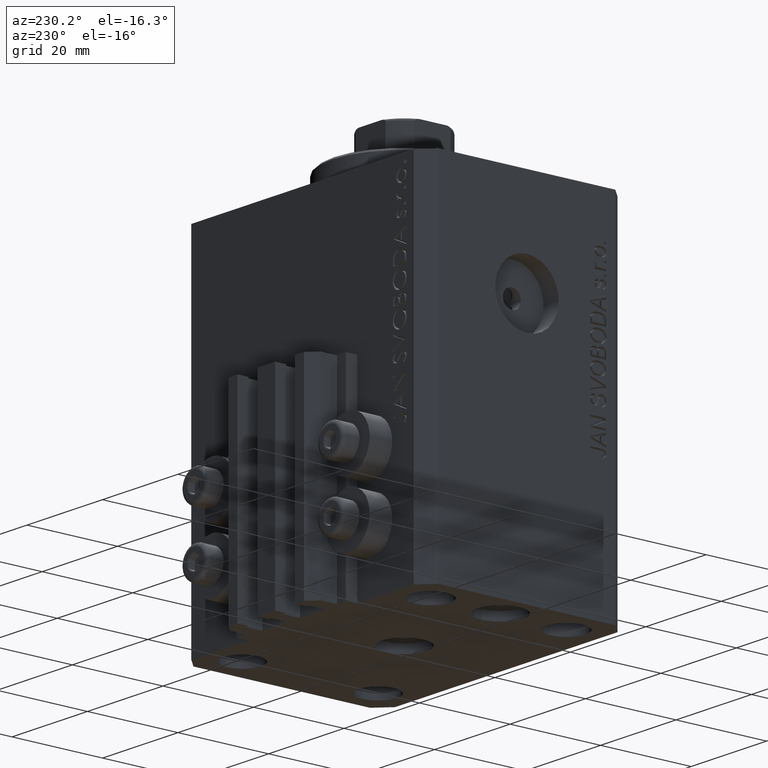
[diagram: clean part render]
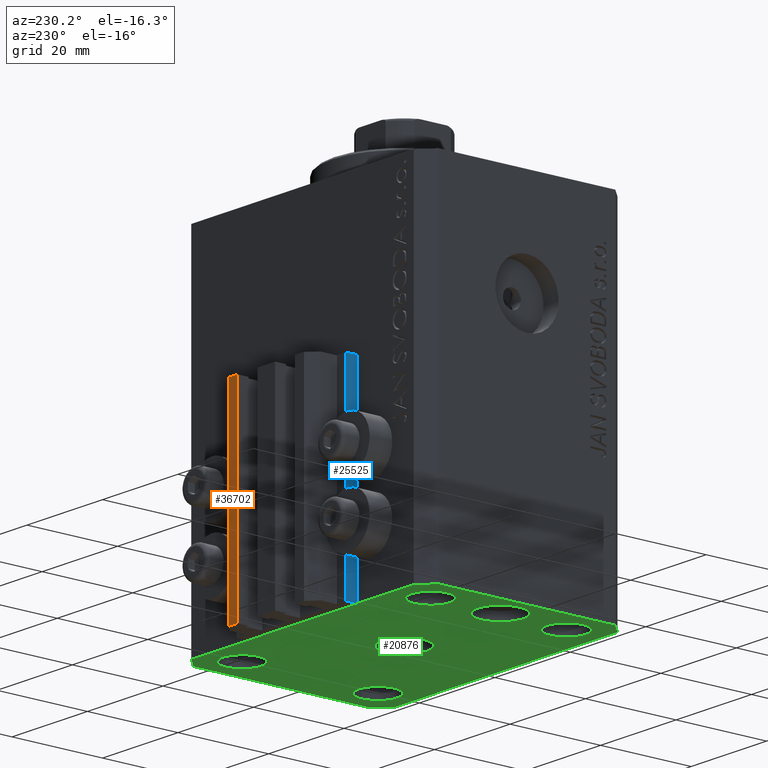
[diagram: same view with three faces highlighted in distinct colors, each labeled with its STEP entity id]
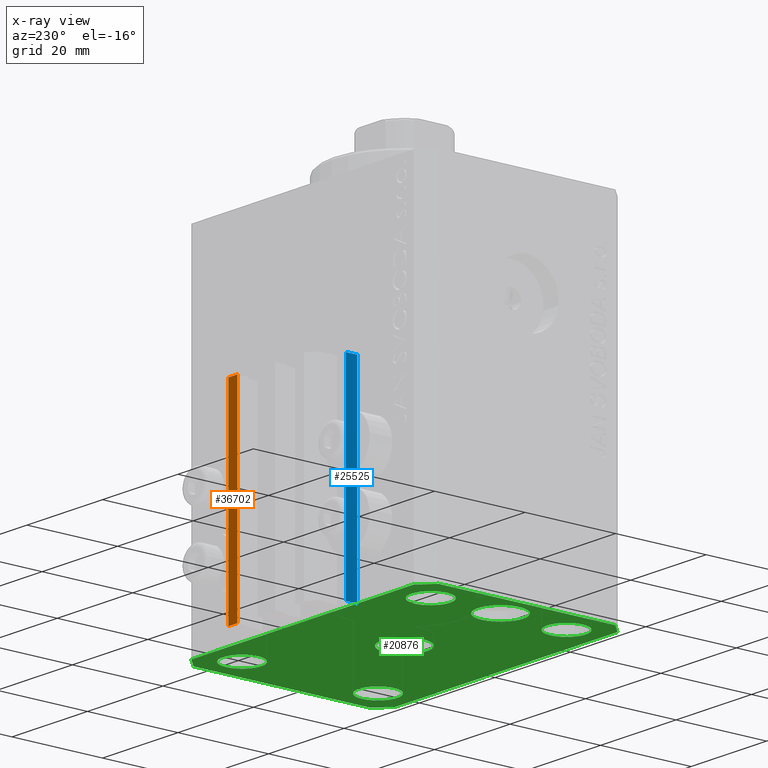
[diagram: x-ray of the same camera — body ghosted, the three highlighted faces saturated]
A machine part, auxiliary view with three faces highlighted in distinct colors.
The next image is the same camera in x-ray (body ghosted, the three faces saturated) — at least one of them is partly hidden behind the body in this view.
Their STEP definitions:

[orange] entity #36702 — the highlighted planar face has unit normal (-0, 1, 0).
#71 = VERTEX_POINT ( 'NONE', #29926 ) ;
#2819 = VECTOR ( 'NONE', #28396, 1000.000000000000000 ) ;
#4669 = EDGE_CURVE ( 'NONE', #71, #8861, #21517, .T. ) ;
#4730 = FACE_OUTER_BOUND ( 'NONE', #14486, .T. ) ;
#5488 = EDGE_CURVE ( 'NONE', #24331, #71, #39129, .T. ) ;
#8861 = VERTEX_POINT ( 'NONE', #27674 ) ;
#11060 = LINE ( 'NONE', #15606, #18005 ) ;
#13747 = EDGE_CURVE ( 'NONE', #24331, #40830, #11060, .T. ) ;
#14486 = EDGE_LOOP ( 'NONE', ( #17598, #23293, #31048, #30594 ) ) ;
#15509 = CARTESIAN_POINT ( 'NONE',  ( 9.999999999999994671, 30.49999999999949551, -77.00000000000000000 ) ) ;
#15606 = CARTESIAN_POINT ( 'NONE',  ( 9.999999999999994671, 30.49999999999949551, -77.00000000000000000 ) ) ;
#17294 = EDGE_CURVE ( 'NONE', #40830, #8861, #45683, .T. ) ;
#17598 = ORIENTED_EDGE ( 'NONE', *, *, #4669, .F. ) ;
#18005 = VECTOR ( 'NONE', #25710, 1000.000000000000000 ) ;
#18645 = VECTOR ( 'NONE', #35276, 1000.000000000000000 ) ;
#18871 = PLANE ( 'NONE',  #22380 ) ;
#20961 = CARTESIAN_POINT ( 'NONE',  ( 9.999999999999994671, 30.49999999999949551, -77.00000000000000000 ) ) ;
#21289 = CARTESIAN_POINT ( 'NONE',  ( 9.999999999999994671, 30.49999999999949551, -33.00000000000000000 ) ) ;
#21517 = LINE ( 'NONE', #21289, #26261 ) ;
#22380 = AXIS2_PLACEMENT_3D ( 'NONE', #15509, #37848, #22727 ) ;
#22727 = DIRECTION ( 'NONE',  ( -1.000000000000000000, -1.476360405086644852E-15, 0.000000000000000000 ) ) ;
#23293 = ORIENTED_EDGE ( 'NONE', *, *, #5488, .F. ) ;
#24331 = VERTEX_POINT ( 'NONE', #20961 ) ;
#24477 = CARTESIAN_POINT ( 'NONE',  ( 9.999999999999994671, 30.49999999999949551, -77.00000000000000000 ) ) ;
#25710 = DIRECTION ( 'NONE',  ( -1.000000000000000000, -1.476360405086644852E-15, 0.000000000000000000 ) ) ;
#26261 = VECTOR ( 'NONE', #45354, 1000.000000000000000 ) ;
#27674 = CARTESIAN_POINT ( 'NONE',  ( 7.649999999999995026, 30.49999999999949196, -33.00000000000000000 ) ) ;
#28396 = DIRECTION ( 'NONE',  ( 0.000000000000000000, 0.000000000000000000, 1.000000000000000000 ) ) ;
#29926 = CARTESIAN_POINT ( 'NONE',  ( 9.999999999999994671, 30.49999999999949551, -33.00000000000000000 ) ) ;
#30594 = ORIENTED_EDGE ( 'NONE', *, *, #17294, .T. ) ;
#31048 = ORIENTED_EDGE ( 'NONE', *, *, #13747, .T. ) ;
#35276 = DIRECTION ( 'NONE',  ( 0.000000000000000000, 0.000000000000000000, 1.000000000000000000 ) ) ;
#36702 = ADVANCED_FACE ( 'NONE', ( #4730 ), #18871, .T. ) ;
#37848 = DIRECTION ( 'NONE',  ( -1.476360405086644852E-15, 1.000000000000000000, 0.000000000000000000 ) ) ;
#39129 = LINE ( 'NONE', #24477, #18645 ) ;
#40830 = VERTEX_POINT ( 'NONE', #43366 ) ;
#43366 = CARTESIAN_POINT ( 'NONE',  ( 7.649999999999995026, 30.49999999999949196, -77.00000000000000000 ) ) ;
#45354 = DIRECTION ( 'NONE',  ( -1.000000000000000000, -1.476360405086644852E-15, 0.000000000000000000 ) ) ;
#45683 = LINE ( 'NONE', #46405, #2819 ) ;
#46405 = CARTESIAN_POINT ( 'NONE',  ( 7.649999999999995026, 30.49999999999949196, -77.00000000000000000 ) ) ;

[blue] entity #25525 — the highlighted planar face has unit normal (-1, 0, 0).
#1470 = FACE_OUTER_BOUND ( 'NONE', #15356, .T. ) ;
#1806 = CARTESIAN_POINT ( 'NONE',  ( -14.50000000000000000, 22.49999999999949907, -77.00000000000000000 ) ) ;
#2135 = ORIENTED_EDGE ( 'NONE', *, *, #45589, .F. ) ;
#4264 = CARTESIAN_POINT ( 'NONE',  ( -14.50000000000000000, 24.99999999999949196, -77.00000000000000000 ) ) ;
#7891 = CARTESIAN_POINT ( 'NONE',  ( -14.50000000000000000, 24.99999999999949196, -33.00000000000000000 ) ) ;
#8452 = CARTESIAN_POINT ( 'NONE',  ( -14.50000000000000000, 22.49999999999949907, -77.00000000000000000 ) ) ;
#8486 = DIRECTION ( 'NONE',  ( 0.000000000000000000, 0.000000000000000000, 1.000000000000000000 ) ) ;
#9262 = VERTEX_POINT ( 'NONE', #7891 ) ;
#9607 = EDGE_CURVE ( 'NONE', #18973, #22212, #44099, .T. ) ;
#10034 = LINE ( 'NONE', #21547, #13162 ) ;
#11343 = DIRECTION ( 'NONE',  ( 0.000000000000000000, 0.000000000000000000, 1.000000000000000000 ) ) ;
#13162 = VECTOR ( 'NONE', #28525, 1000.000000000000000 ) ;
#13275 = VECTOR ( 'NONE', #11343, 1000.000000000000000 ) ;
#14513 = ORIENTED_EDGE ( 'NONE', *, *, #9607, .T. ) ;
#14907 = CARTESIAN_POINT ( 'NONE',  ( -14.50000000000000000, 24.99999999999949196, -77.00000000000000000 ) ) ;
#15356 = EDGE_LOOP ( 'NONE', ( #39786, #2135, #14513, #32141 ) ) ;
#18973 = VERTEX_POINT ( 'NONE', #14907 ) ;
#19492 = LINE ( 'NONE', #8452, #13275 ) ;
#21547 = CARTESIAN_POINT ( 'NONE',  ( -14.50000000000000000, 24.99999999999949196, -33.00000000000000000 ) ) ;
#22212 = VERTEX_POINT ( 'NONE', #1806 ) ;
#22610 = PLANE ( 'NONE',  #27786 ) ;
#24516 = VECTOR ( 'NONE', #8486, 1000.000000000000000 ) ;
#25525 = ADVANCED_FACE ( 'NONE', ( #1470 ), #22610, .T. ) ;
#27786 = AXIS2_PLACEMENT_3D ( 'NONE', #37959, #44687, #44930 ) ;
#28144 = EDGE_CURVE ( 'NONE', #9262, #29523, #10034, .T. ) ;
#28525 = DIRECTION ( 'NONE',  ( 0.000000000000000000, -1.000000000000000000, 0.000000000000000000 ) ) ;
#29523 = VERTEX_POINT ( 'NONE', #42816 ) ;
#30925 = VECTOR ( 'NONE', #33748, 1000.000000000000000 ) ;
#32141 = ORIENTED_EDGE ( 'NONE', *, *, #38843, .T. ) ;
#33748 = DIRECTION ( 'NONE',  ( 0.000000000000000000, -1.000000000000000000, 0.000000000000000000 ) ) ;
#33942 = CARTESIAN_POINT ( 'NONE',  ( -14.50000000000000000, 24.99999999999949196, -77.00000000000000000 ) ) ;
#34646 = LINE ( 'NONE', #33942, #24516 ) ;
#37959 = CARTESIAN_POINT ( 'NONE',  ( -14.50000000000000000, 24.99999999999949196, -77.00000000000000000 ) ) ;
#38843 = EDGE_CURVE ( 'NONE', #22212, #29523, #19492, .T. ) ;
#39786 = ORIENTED_EDGE ( 'NONE', *, *, #28144, .F. ) ;
#42816 = CARTESIAN_POINT ( 'NONE',  ( -14.50000000000000000, 22.49999999999949907, -33.00000000000000000 ) ) ;
#44099 = LINE ( 'NONE', #4264, #30925 ) ;
#44687 = DIRECTION ( 'NONE',  ( -1.000000000000000000, 0.000000000000000000, 0.000000000000000000 ) ) ;
#44930 = DIRECTION ( 'NONE',  ( 0.000000000000000000, 0.000000000000000000, 1.000000000000000000 ) ) ;
#45589 = EDGE_CURVE ( 'NONE', #18973, #9262, #34646, .T. ) ;

[green] entity #20876 — the highlighted planar face has unit normal (0, 0, 1).
#270 = CARTESIAN_POINT ( 'NONE',  ( -25.50000000000000000, 0.000000000000000000, -77.00000000000000000 ) ) ;
#743 = VECTOR ( 'NONE', #43797, 1000.000000000000114 ) ;
#1059 = EDGE_CURVE ( 'NONE', #45834, #45542, #26950, .T. ) ;
#1090 = EDGE_LOOP ( 'NONE', ( #8332, #16184 ) ) ;
#1272 = EDGE_LOOP ( 'NONE', ( #23699, #35541 ) ) ;
#1365 = ORIENTED_EDGE ( 'NONE', *, *, #35459, .F. ) ;
#1374 = FACE_BOUND ( 'NONE', #1272, .T. ) ;
#1862 = DIRECTION ( 'NONE',  ( 1.000000000000000000, 0.000000000000000000, 0.000000000000000000 ) ) ;
#2053 = DIRECTION ( 'NONE',  ( 1.000000000000000000, 0.000000000000000000, 0.000000000000000000 ) ) ;
#2157 = ORIENTED_EDGE ( 'NONE', *, *, #30575, .F. ) ;
#2251 = VERTEX_POINT ( 'NONE', #25356 ) ;
#3584 = ORIENTED_EDGE ( 'NONE', *, *, #22153, .F. ) ;
#3698 = AXIS2_PLACEMENT_3D ( 'NONE', #35210, #23684, #1862 ) ;
#3703 = VERTEX_POINT ( 'NONE', #26893 ) ;
#3787 = DIRECTION ( 'NONE',  ( 1.000000000000000000, 0.000000000000000000, 0.000000000000000000 ) ) ;
#4037 = PLANE ( 'NONE',  #18229 ) ;
#4115 = CARTESIAN_POINT ( 'NONE',  ( -29.25000000002137668, 14.99999999999999645, -77.00000000000000000 ) ) ;
#4149 = VECTOR ( 'NONE', #30957, 1000.000000000000000 ) ;
#4267 = CARTESIAN_POINT ( 'NONE',  ( 25.00000000000000000, 14.99999999999999289, -77.00000000000000000 ) ) ;
#4502 = ORIENTED_EDGE ( 'NONE', *, *, #11155, .F. ) ;
#4980 = FACE_BOUND ( 'NONE', #1090, .T. ) ;
#5105 = VERTEX_POINT ( 'NONE', #25298 ) ;
#5236 = CARTESIAN_POINT ( 'NONE',  ( 29.24999999995729283, 14.99999999999999289, -77.00000000000000000 ) ) ;
#5328 = CARTESIAN_POINT ( 'NONE',  ( 25.00000000000000000, 14.99999999999999289, -77.00000000000000000 ) ) ;
#5396 = VERTEX_POINT ( 'NONE', #33618 ) ;
#5439 = AXIS2_PLACEMENT_3D ( 'NONE', #13547, #28207, #31564 ) ;
#5729 = CIRCLE ( 'NONE', #24115, 4.999999999996659561 ) ;
#5766 = LINE ( 'NONE', #17492, #29008 ) ;
#6142 = VERTEX_POINT ( 'NONE', #39674 ) ;
#6986 = VECTOR ( 'NONE', #41506, 1000.000000000000000 ) ;
#7294 = VERTEX_POINT ( 'NONE', #5236 ) ;
#7653 = AXIS2_PLACEMENT_3D ( 'NONE', #4267, #44325, #3787 ) ;
#7707 = LINE ( 'NONE', #8177, #27557 ) ;
#7851 = FACE_OUTER_BOUND ( 'NONE', #10174, .T. ) ;
#8062 = ORIENTED_EDGE ( 'NONE', *, *, #15325, .F. ) ;
#8093 = FACE_BOUND ( 'NONE', #23249, .T. ) ;
#8177 = CARTESIAN_POINT ( 'NONE',  ( 29.49999999999650413, -22.49999999999949196, -77.00000000000000000 ) ) ;
#8332 = ORIENTED_EDGE ( 'NONE', *, *, #18205, .F. ) ;
#8549 = ORIENTED_EDGE ( 'NONE', *, *, #21563, .F. ) ;
#9730 = AXIS2_PLACEMENT_3D ( 'NONE', #30669, #45312, #34499 ) ;
#10174 = EDGE_LOOP ( 'NONE', ( #28004, #21268, #8062, #20416, #8549, #30235, #4502, #3584 ) ) ;
#10758 = CARTESIAN_POINT ( 'NONE',  ( -25.50000000000000000, 0.000000000000000000, -77.00000000000000000 ) ) ;
#10963 = CARTESIAN_POINT ( 'NONE',  ( 29.49999999999707967, 22.49999999999952038, -77.00000000000000000 ) ) ;
#11155 = EDGE_CURVE ( 'NONE', #39348, #2251, #15836, .T. ) ;
#11357 = DIRECTION ( 'NONE',  ( 1.000000000000000000, 0.000000000000000000, 0.000000000000000000 ) ) ;
#11896 = CIRCLE ( 'NONE', #35662, 4.249999999976314058 ) ;
#11985 = VERTEX_POINT ( 'NONE', #14649 ) ;
#12038 = CARTESIAN_POINT ( 'NONE',  ( -20.50000000000333955, 6.123233995732674066E-16, -77.00000000000000000 ) ) ;
#12176 = DIRECTION ( 'NONE',  ( 0.000000000000000000, 0.000000000000000000, -1.000000000000000000 ) ) ;
#12211 = CARTESIAN_POINT ( 'NONE',  ( 32.49999999999702993, 19.49999999999945999, -77.00000000000000000 ) ) ;
#12213 = VERTEX_POINT ( 'NONE', #38902 ) ;
#12344 = CIRCLE ( 'NONE', #43786, 5.000000000000000000 ) ;
#12384 = CARTESIAN_POINT ( 'NONE',  ( 0.000000000000000000, 0.000000000000000000, -77.00000000000000000 ) ) ;
#12581 = LINE ( 'NONE', #24121, #37243 ) ;
#13547 = CARTESIAN_POINT ( 'NONE',  ( -25.00000000000000000, 14.99999999999999645, -77.00000000000000000 ) ) ;
#13788 = VERTEX_POINT ( 'NONE', #4115 ) ;
#14138 = ORIENTED_EDGE ( 'NONE', *, *, #32608, .F. ) ;
#14549 = DIRECTION ( 'NONE',  ( 1.000000000000000000, 0.000000000000000000, 0.000000000000000000 ) ) ;
#14649 = CARTESIAN_POINT ( 'NONE',  ( 32.49999999999702993, 19.49999999999945999, -77.00000000000000000 ) ) ;
#15325 = EDGE_CURVE ( 'NONE', #6142, #11985, #12581, .T. ) ;
#15787 = DIRECTION ( 'NONE',  ( -1.000000000000000000, 0.000000000000000000, 0.000000000000000000 ) ) ;
#15836 = LINE ( 'NONE', #38647, #4149 ) ;
#16184 = ORIENTED_EDGE ( 'NONE', *, *, #22120, .F. ) ;
#16313 = CIRCLE ( 'NONE', #43172, 4.249999999957291053 ) ;
#16430 = DIRECTION ( 'NONE',  ( -0.000000000000000000, -0.000000000000000000, -1.000000000000000000 ) ) ;
#16749 = ORIENTED_EDGE ( 'NONE', *, *, #42812, .F. ) ;
#16902 = DIRECTION ( 'NONE',  ( -0.7071067811865474617, -0.7071067811865474617, 0.000000000000000000 ) ) ;
#17492 = CARTESIAN_POINT ( 'NONE',  ( -29.49999999999650413, -22.49999999999949907, -77.00000000000000000 ) ) ;
#18205 = EDGE_CURVE ( 'NONE', #41010, #13788, #37336, .T. ) ;
#18229 = AXIS2_PLACEMENT_3D ( 'NONE', #12384, #22734, #22961 ) ;
#18346 = CARTESIAN_POINT ( 'NONE',  ( -30.49999999999665690, 0.000000000000000000, -77.00000000000000000 ) ) ;
#19743 = DIRECTION ( 'NONE',  ( -0.000000000000000000, -0.000000000000000000, -1.000000000000000000 ) ) ;
#20416 = ORIENTED_EDGE ( 'NONE', *, *, #44123, .F. ) ;
#20609 = CIRCLE ( 'NONE', #42091, 4.249999999976314058 ) ;
#20627 = ORIENTED_EDGE ( 'NONE', *, *, #21793, .F. ) ;
#20876 = ADVANCED_FACE ( 'NONE', ( #40742, #1374, #8093, #26804, #26335, #4980, #7851 ), #4037, .F. ) ;
#21268 = ORIENTED_EDGE ( 'NONE', *, *, #23475, .F. ) ;
#21563 = EDGE_CURVE ( 'NONE', #12213, #3703, #5766, .T. ) ;
#21595 = VERTEX_POINT ( 'NONE', #29018 ) ;
#21793 = EDGE_CURVE ( 'NONE', #21595, #30340, #42791, .T. ) ;
#21909 = CARTESIAN_POINT ( 'NONE',  ( 20.75000000004271072, 14.99999999999999289, -77.00000000000000000 ) ) ;
#22120 = EDGE_CURVE ( 'NONE', #13788, #41010, #46044, .T. ) ;
#22153 = EDGE_CURVE ( 'NONE', #5105, #39348, #23633, .T. ) ;
#22705 = EDGE_CURVE ( 'NONE', #40327, #37826, #12344, .T. ) ;
#22734 = DIRECTION ( 'NONE',  ( 0.000000000000000000, 0.000000000000000000, 1.000000000000000000 ) ) ;
#22803 = DIRECTION ( 'NONE',  ( -1.000000000000000000, 0.000000000000000000, 0.000000000000000000 ) ) ;
#22961 = DIRECTION ( 'NONE',  ( 1.000000000000000000, 0.000000000000000000, -0.000000000000000000 ) ) ;
#23111 = CARTESIAN_POINT ( 'NONE',  ( -24.99999999999999289, -15.00000000000000355, -77.00000000000000000 ) ) ;
#23249 = EDGE_LOOP ( 'NONE', ( #1365, #20627 ) ) ;
#23382 = CARTESIAN_POINT ( 'NONE',  ( 29.49999999999707967, 22.49999999999952038, -77.00000000000000000 ) ) ;
#23475 = EDGE_CURVE ( 'NONE', #11985, #46427, #45341, .T. ) ;
#23633 = LINE ( 'NONE', #27970, #27678 ) ;
#23684 = DIRECTION ( 'NONE',  ( -0.000000000000000000, -0.000000000000000000, -1.000000000000000000 ) ) ;
#23699 = ORIENTED_EDGE ( 'NONE', *, *, #42603, .F. ) ;
#24115 = AXIS2_PLACEMENT_3D ( 'NONE', #270, #37229, #22803 ) ;
#24121 = CARTESIAN_POINT ( 'NONE',  ( 32.49999999999651124, -19.49999999999949196, -77.00000000000000000 ) ) ;
#24377 = VERTEX_POINT ( 'NONE', #21909 ) ;
#25298 = CARTESIAN_POINT ( 'NONE',  ( -29.49999999999650413, 22.49999999999949907, -77.00000000000000000 ) ) ;
#25338 = ORIENTED_EDGE ( 'NONE', *, *, #22705, .F. ) ;
#25356 = CARTESIAN_POINT ( 'NONE',  ( -32.49999999999650413, -19.49999999999949907, -77.00000000000000000 ) ) ;
#25370 = CARTESIAN_POINT ( 'NONE',  ( 24.99999999999999289, -15.00000000000000355, -77.00000000000000000 ) ) ;
#25614 = DIRECTION ( 'NONE',  ( -1.000000000000000000, -3.528251137580330676E-16, 0.000000000000000000 ) ) ;
#26144 = CARTESIAN_POINT ( 'NONE',  ( 5.000000000000000000, 6.123233995736765296E-16, -77.00000000000000000 ) ) ;
#26276 = CARTESIAN_POINT ( 'NONE',  ( -20.74999999997862687, 14.99999999999999645, -77.00000000000000000 ) ) ;
#26335 = FACE_BOUND ( 'NONE', #35076, .T. ) ;
#26804 = FACE_BOUND ( 'NONE', #27873, .T. ) ;
#26893 = CARTESIAN_POINT ( 'NONE',  ( 29.49999999999650413, -22.49999999999949196, -77.00000000000000000 ) ) ;
#26950 = CIRCLE ( 'NONE', #30791, 4.999999999996659561 ) ;
#27234 = DIRECTION ( 'NONE',  ( 1.334402673828349134E-14, 1.000000000000000000, 0.000000000000000000 ) ) ;
#27399 = DIRECTION ( 'NONE',  ( -0.000000000000000000, -0.000000000000000000, -1.000000000000000000 ) ) ;
#27557 = VECTOR ( 'NONE', #33400, 1000.000000000000000 ) ;
#27678 = VECTOR ( 'NONE', #16902, 1000.000000000000114 ) ;
#27873 = EDGE_LOOP ( 'NONE', ( #16749, #14138 ) ) ;
#27970 = CARTESIAN_POINT ( 'NONE',  ( -29.49999999999650413, 22.49999999999949907, -77.00000000000000000 ) ) ;
#28004 = ORIENTED_EDGE ( 'NONE', *, *, #44498, .F. ) ;
#28207 = DIRECTION ( 'NONE',  ( -0.000000000000000000, -0.000000000000000000, -1.000000000000000000 ) ) ;
#28352 = CARTESIAN_POINT ( 'NONE',  ( -32.49999999999650413, 19.49999999999949907, -77.00000000000000000 ) ) ;
#29008 = VECTOR ( 'NONE', #32156, 1000.000000000000000 ) ;
#29018 = CARTESIAN_POINT ( 'NONE',  ( -29.25000000004036593, -15.00000000000000355, -77.00000000000000000 ) ) ;
#29164 = CARTESIAN_POINT ( 'NONE',  ( -32.49999999999650413, -19.49999999999949907, -77.00000000000000000 ) ) ;
#29216 = LINE ( 'NONE', #10963, #34435 ) ;
#29223 = EDGE_CURVE ( 'NONE', #37826, #40327, #33900, .T. ) ;
#29949 = CARTESIAN_POINT ( 'NONE',  ( 0.000000000000000000, 0.000000000000000000, -77.00000000000000000 ) ) ;
#30235 = ORIENTED_EDGE ( 'NONE', *, *, #44708, .F. ) ;
#30340 = VERTEX_POINT ( 'NONE', #42157 ) ;
#30575 = EDGE_CURVE ( 'NONE', #24377, #7294, #16313, .T. ) ;
#30669 = CARTESIAN_POINT ( 'NONE',  ( -25.00000000000000000, 14.99999999999999645, -77.00000000000000000 ) ) ;
#30791 = AXIS2_PLACEMENT_3D ( 'NONE', #10758, #40297, #32389 ) ;
#30957 = DIRECTION ( 'NONE',  ( 0.000000000000000000, -1.000000000000000000, 0.000000000000000000 ) ) ;
#31479 = DIRECTION ( 'NONE',  ( 1.000000000000000000, 0.000000000000000000, 0.000000000000000000 ) ) ;
#31564 = DIRECTION ( 'NONE',  ( 1.000000000000000000, 0.000000000000000000, 0.000000000000000000 ) ) ;
#31707 = ORIENTED_EDGE ( 'NONE', *, *, #29223, .F. ) ;
#32156 = DIRECTION ( 'NONE',  ( 1.000000000000000000, 1.176083712526788232E-16, 0.000000000000000000 ) ) ;
#32389 = DIRECTION ( 'NONE',  ( -1.000000000000000000, 0.000000000000000000, 0.000000000000000000 ) ) ;
#32608 = EDGE_CURVE ( 'NONE', #5396, #37057, #11896, .T. ) ;
#33240 = LINE ( 'NONE', #29164, #743 ) ;
#33400 = DIRECTION ( 'NONE',  ( 0.7071067811865483499, 0.7071067811865466846, 0.000000000000000000 ) ) ;
#33618 = CARTESIAN_POINT ( 'NONE',  ( 20.75000000002367884, -15.00000000000000355, -77.00000000000000000 ) ) ;
#33900 = CIRCLE ( 'NONE', #38548, 5.000000000000000000 ) ;
#34435 = VECTOR ( 'NONE', #25614, 1000.000000000000000 ) ;
#34499 = DIRECTION ( 'NONE',  ( 1.000000000000000000, 0.000000000000000000, 0.000000000000000000 ) ) ;
#35076 = EDGE_LOOP ( 'NONE', ( #44084, #2157 ) ) ;
#35210 = CARTESIAN_POINT ( 'NONE',  ( -24.99999999999999289, -15.00000000000000355, -77.00000000000000000 ) ) ;
#35459 = EDGE_CURVE ( 'NONE', #30340, #21595, #39451, .T. ) ;
#35541 = ORIENTED_EDGE ( 'NONE', *, *, #1059, .F. ) ;
#35556 = CARTESIAN_POINT ( 'NONE',  ( 29.24999999997631051, -15.00000000000000355, -77.00000000000000000 ) ) ;
#35662 = AXIS2_PLACEMENT_3D ( 'NONE', #25370, #47452, #14549 ) ;
#35675 = CARTESIAN_POINT ( 'NONE',  ( 0.000000000000000000, 0.000000000000000000, -77.00000000000000000 ) ) ;
#35905 = DIRECTION ( 'NONE',  ( -1.000000000000000000, 0.000000000000000000, 0.000000000000000000 ) ) ;
#37057 = VERTEX_POINT ( 'NONE', #35556 ) ;
#37229 = DIRECTION ( 'NONE',  ( 0.000000000000000000, 0.000000000000000000, -1.000000000000000000 ) ) ;
#37243 = VECTOR ( 'NONE', #27234, 1000.000000000000000 ) ;
#37336 = CIRCLE ( 'NONE', #9730, 4.250000000021375790 ) ;
#37826 = VERTEX_POINT ( 'NONE', #44517 ) ;
#37908 = AXIS2_PLACEMENT_3D ( 'NONE', #23111, #19743, #11357 ) ;
#38548 = AXIS2_PLACEMENT_3D ( 'NONE', #35675, #43577, #35905 ) ;
#38647 = CARTESIAN_POINT ( 'NONE',  ( -32.49999999999650413, 19.49999999999949907, -77.00000000000000000 ) ) ;
#38902 = CARTESIAN_POINT ( 'NONE',  ( -29.49999999999650413, -22.49999999999949907, -77.00000000000000000 ) ) ;
#39348 = VERTEX_POINT ( 'NONE', #28352 ) ;
#39451 = CIRCLE ( 'NONE', #37908, 4.250000000040370374 ) ;
#39674 = CARTESIAN_POINT ( 'NONE',  ( 32.49999999999651124, -19.49999999999949196, -77.00000000000000000 ) ) ;
#40297 = DIRECTION ( 'NONE',  ( 0.000000000000000000, 0.000000000000000000, -1.000000000000000000 ) ) ;
#40327 = VERTEX_POINT ( 'NONE', #26144 ) ;
#40613 = CIRCLE ( 'NONE', #7653, 4.249999999957291053 ) ;
#40742 = FACE_BOUND ( 'NONE', #46584, .T. ) ;
#41010 = VERTEX_POINT ( 'NONE', #26276 ) ;
#41506 = DIRECTION ( 'NONE',  ( -0.7071067811865344721, 0.7071067811865606734, 0.000000000000000000 ) ) ;
#42091 = AXIS2_PLACEMENT_3D ( 'NONE', #45722, #16430, #2053 ) ;
#42157 = CARTESIAN_POINT ( 'NONE',  ( -20.74999999995962341, -15.00000000000000355, -77.00000000000000000 ) ) ;
#42603 = EDGE_CURVE ( 'NONE', #45542, #45834, #5729, .T. ) ;
#42791 = CIRCLE ( 'NONE', #3698, 4.250000000040370374 ) ;
#42812 = EDGE_CURVE ( 'NONE', #37057, #5396, #20609, .T. ) ;
#43172 = AXIS2_PLACEMENT_3D ( 'NONE', #5328, #27399, #31479 ) ;
#43577 = DIRECTION ( 'NONE',  ( 0.000000000000000000, 0.000000000000000000, -1.000000000000000000 ) ) ;
#43786 = AXIS2_PLACEMENT_3D ( 'NONE', #29949, #12176, #15787 ) ;
#43797 = DIRECTION ( 'NONE',  ( 0.7071067811865474617, -0.7071067811865474617, 0.000000000000000000 ) ) ;
#44084 = ORIENTED_EDGE ( 'NONE', *, *, #45288, .F. ) ;
#44123 = EDGE_CURVE ( 'NONE', #3703, #6142, #7707, .T. ) ;
#44325 = DIRECTION ( 'NONE',  ( -0.000000000000000000, -0.000000000000000000, -1.000000000000000000 ) ) ;
#44498 = EDGE_CURVE ( 'NONE', #46427, #5105, #29216, .T. ) ;
#44517 = CARTESIAN_POINT ( 'NONE',  ( -5.000000000000000000, 0.000000000000000000, -77.00000000000000000 ) ) ;
#44708 = EDGE_CURVE ( 'NONE', #2251, #12213, #33240, .T. ) ;
#45288 = EDGE_CURVE ( 'NONE', #7294, #24377, #40613, .T. ) ;
#45312 = DIRECTION ( 'NONE',  ( -0.000000000000000000, -0.000000000000000000, -1.000000000000000000 ) ) ;
#45341 = LINE ( 'NONE', #12211, #6986 ) ;
#45542 = VERTEX_POINT ( 'NONE', #18346 ) ;
#45722 = CARTESIAN_POINT ( 'NONE',  ( 24.99999999999999289, -15.00000000000000355, -77.00000000000000000 ) ) ;
#45834 = VERTEX_POINT ( 'NONE', #12038 ) ;
#46044 = CIRCLE ( 'NONE', #5439, 4.250000000021375790 ) ;
#46427 = VERTEX_POINT ( 'NONE', #23382 ) ;
#46584 = EDGE_LOOP ( 'NONE', ( #31707, #25338 ) ) ;
#47452 = DIRECTION ( 'NONE',  ( -0.000000000000000000, -0.000000000000000000, -1.000000000000000000 ) ) ;